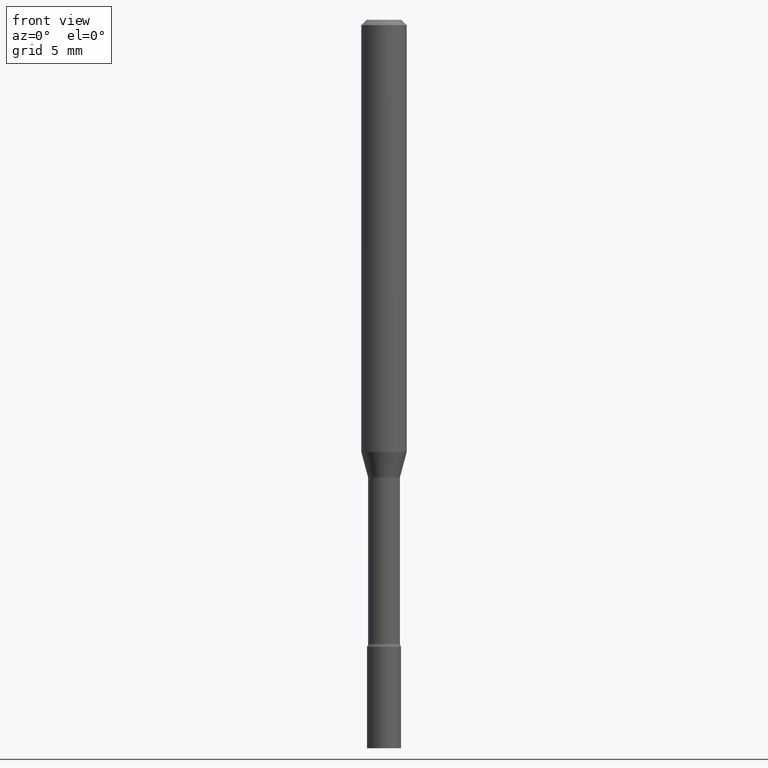
[diagram: clean part render]
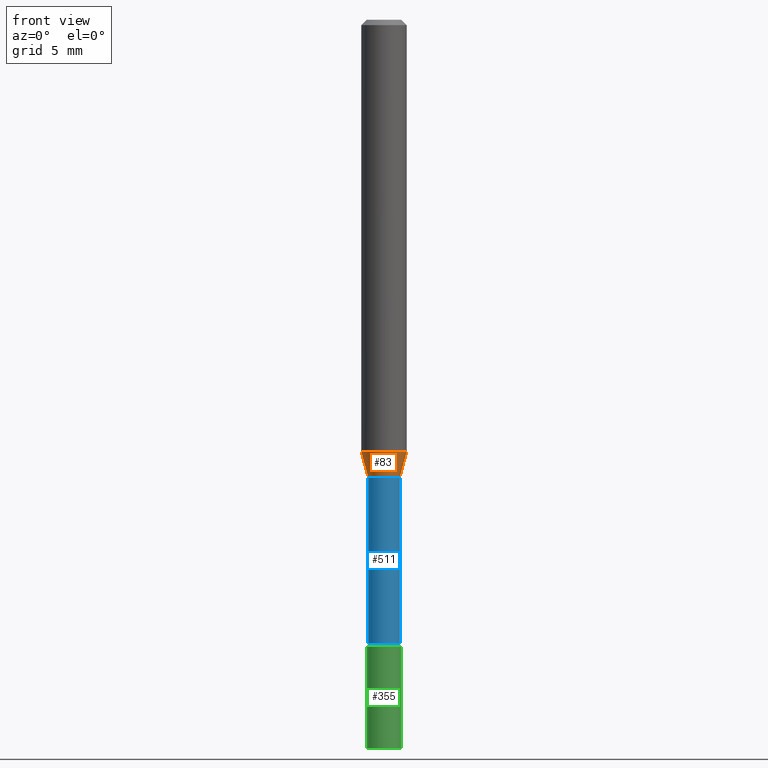
[diagram: same view with three faces highlighted in distinct colors, each labeled with its STEP entity id]
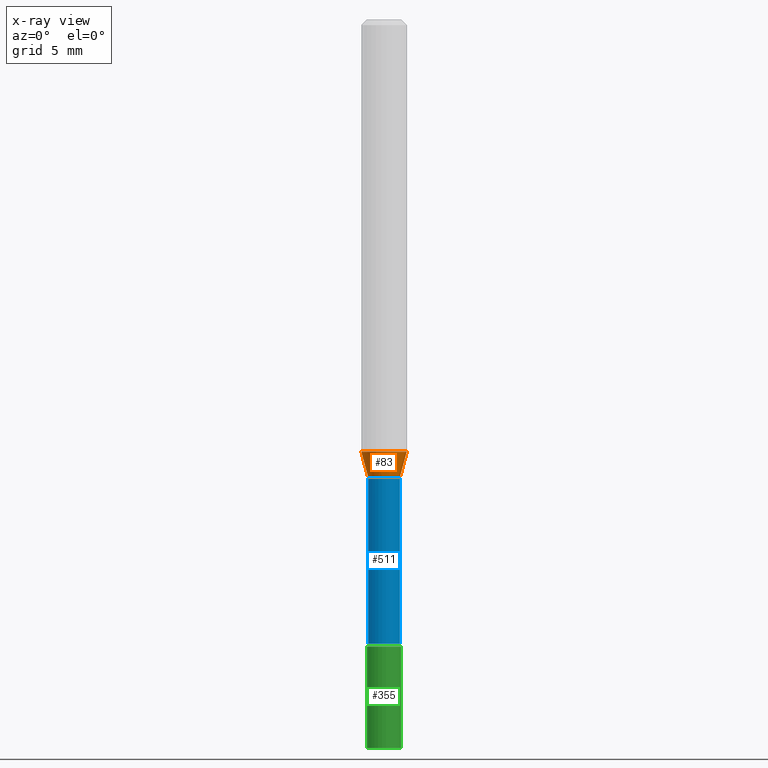
[diagram: x-ray of the same camera — body ghosted, the three highlighted faces saturated]
A machine part, front view with three faces highlighted in distinct colors.
The next image is the same camera in x-ray (body ghosted, the three faces saturated) — at least one of them is partly hidden behind the body in this view.
Their STEP definitions:

[orange] entity #83 — the highlighted conical surface has half-angle 15 deg.
#2 = VERTEX_POINT ( 'NONE', #27 ) ;
#3 = CARTESIAN_POINT ( 'NONE',  ( 0.04421111260566398110, -4.687365116437714355E-15, -1.254092501787273051 ) ) ;
#7 = ORIENTED_EDGE ( 'NONE', *, *, #67, .T. ) ;
#16 = DIRECTION ( 'NONE',  ( -0.2588190451025214611, 5.211531920934550253E-15, 0.9659258262890679791 ) ) ;
#27 = CARTESIAN_POINT ( 'NONE',  ( -0.04421111260566398110, -3.880370908893754533E-15, -1.254092501787273051 ) ) ;
#36 = CARTESIAN_POINT ( 'NONE',  ( 0.06250000000000000000, -4.576764476837847734E-15, -1.185837444817705144 ) ) ;
#67 = EDGE_CURVE ( 'NONE', #501, #213, #148, .T. ) ;
#69 = FACE_OUTER_BOUND ( 'NONE', #486, .T. ) ;
#71 = CARTESIAN_POINT ( 'NONE',  ( 0.04421111260566398110, -4.687365116437714355E-15, -1.254092501787273051 ) ) ;
#83 = ADVANCED_FACE ( 'NONE', ( #69 ), #418, .T. ) ;
#112 = DIRECTION ( 'NONE',  ( -2.445468806185136597E-29, 3.491481338843145583E-15, 1.000000000000000000 ) ) ;
#118 = ORIENTED_EDGE ( 'NONE', *, *, #261, .F. ) ;
#121 = DIRECTION ( 'NONE',  ( 1.000000000000000000, -6.982962677686262766E-15, 0.000000000000000000 ) ) ;
#125 = CIRCLE ( 'NONE', #309, 0.06250000000000000000 ) ;
#131 = CARTESIAN_POINT ( 'NONE',  ( -0.04421111260566398110, -4.064501718155114829E-15, -1.254092501787273051 ) ) ;
#132 = ORIENTED_EDGE ( 'NONE', *, *, #319, .T. ) ;
#143 = DIRECTION ( 'NONE',  ( 1.000000000000000000, -6.982962677686264344E-15, 0.000000000000000000 ) ) ;
#148 = LINE ( 'NONE', #71, #387 ) ;
#151 = VECTOR ( 'NONE', #16, 39.37007874015748143 ) ;
#191 = AXIS2_PLACEMENT_3D ( 'NONE', #237, #473, #200 ) ;
#200 = DIRECTION ( 'NONE',  ( 1.000000000000000000, -6.982962677686264344E-15, 0.000000000000000000 ) ) ;
#202 = ORIENTED_EDGE ( 'NONE', *, *, #478, .F. ) ;
#213 = VERTEX_POINT ( 'NONE', #36 ) ;
#237 = CARTESIAN_POINT ( 'NONE',  ( 3.066844093191453631E-29, -4.378640567173378440E-15, -1.254092501787273051 ) ) ;
#251 = CARTESIAN_POINT ( 'NONE',  ( -0.06250000000000000000, -3.696240099632393448E-15, -1.185837444817705144 ) ) ;
#261 = EDGE_CURVE ( 'NONE', #417, #213, #125, .T. ) ;
#303 = DIRECTION ( 'NONE',  ( 0.2588190451025214611, 1.565188264969620982E-15, 0.9659258262890679791 ) ) ;
#304 = CARTESIAN_POINT ( 'NONE',  ( 3.066844093191453631E-29, -4.378640567173378440E-15, -1.254092501787273051 ) ) ;
#309 = AXIS2_PLACEMENT_3D ( 'NONE', #316, #516, #121 ) ;
#316 = CARTESIAN_POINT ( 'NONE',  ( 2.899928480507986581E-29, -4.140329309482456065E-15, -1.185837444817705144 ) ) ;
#319 = EDGE_CURVE ( 'NONE', #2, #501, #389, .T. ) ;
#325 = LINE ( 'NONE', #131, #151 ) ;
#387 = VECTOR ( 'NONE', #303, 39.37007874015748143 ) ;
#389 = CIRCLE ( 'NONE', #191, 0.04421111260566398110 ) ;
#417 = VERTEX_POINT ( 'NONE', #251 ) ;
#418 = CONICAL_SURFACE ( 'NONE', #472, 0.04421111260566398110, 0.2617993877991501850 ) ;
#472 = AXIS2_PLACEMENT_3D ( 'NONE', #304, #112, #143 ) ;
#473 = DIRECTION ( 'NONE',  ( -2.445468806185136597E-29, 3.491481338843145583E-15, 1.000000000000000000 ) ) ;
#478 = EDGE_CURVE ( 'NONE', #2, #417, #325, .T. ) ;
#486 = EDGE_LOOP ( 'NONE', ( #202, #132, #7, #118 ) ) ;
#501 = VERTEX_POINT ( 'NONE', #3 ) ;
#516 = DIRECTION ( 'NONE',  ( -2.445468806185136597E-29, 3.491481338843145583E-15, 1.000000000000000000 ) ) ;

[blue] entity #511 — the highlighted cylindrical surface (edge-blend (fillet) strip) has radius 1.11 mm, axis along (-0, 0, 1).
#4 = CIRCLE ( 'NONE', #293, 0.04369999999999994722 ) ;
#5 = VERTEX_POINT ( 'NONE', #342 ) ;
#10 = VECTOR ( 'NONE', #117, 39.37007874015748143 ) ;
#22 = AXIS2_PLACEMENT_3D ( 'NONE', #159, #203, #314 ) ;
#26 = CARTESIAN_POINT ( 'NONE',  ( 0.000000000000000000, 0.000000000000000000, 0.000000000000000000 ) ) ;
#34 = VERTEX_POINT ( 'NONE', #182 ) ;
#37 = VERTEX_POINT ( 'NONE', #381 ) ;
#47 = VERTEX_POINT ( 'NONE', #340 ) ;
#48 = EDGE_CURVE ( 'NONE', #37, #5, #509, .T. ) ;
#76 = CARTESIAN_POINT ( 'NONE',  ( 4.187310283291023133E-29, -5.978369332325802035E-15, -1.712273030308291144 ) ) ;
#80 = EDGE_LOOP ( 'NONE', ( #207, #357, #102, #407 ) ) ;
#102 = ORIENTED_EDGE ( 'NONE', *, *, #333, .T. ) ;
#116 = CARTESIAN_POINT ( 'NONE',  ( 0.04369999999999997498, -3.051554690148896707E-16, 2.130889251022822588E-30 ) ) ;
#117 = DIRECTION ( 'NONE',  ( -2.445468806185136877E-29, 3.491481338843145188E-15, 1.000000000000000000 ) ) ;
#140 = CARTESIAN_POINT ( 'NONE',  ( -0.04369999999999997498, 3.105071755271636034E-16, -2.149574634441392424E-30 ) ) ;
#159 = CARTESIAN_POINT ( 'NONE',  ( 3.076338101710126374E-29, -4.392195495165068238E-15, -1.257974787463810973 ) ) ;
#181 = VECTOR ( 'NONE', #503, 39.37007874015748143 ) ;
#182 = CARTESIAN_POINT ( 'NONE',  ( 0.04369999999999994722, -6.283524801340691903E-15, -1.712273030308291144 ) ) ;
#199 = CIRCLE ( 'NONE', #22, 0.04370000000000000273 ) ;
#203 = DIRECTION ( 'NONE',  ( -2.445468806185136597E-29, 3.491481338843145583E-15, 1.000000000000000000 ) ) ;
#207 = ORIENTED_EDGE ( 'NONE', *, *, #48, .F. ) ;
#229 = DIRECTION ( 'NONE',  ( 1.000000000000000000, -6.982962677686272233E-15, 0.000000000000000000 ) ) ;
#246 = EDGE_CURVE ( 'NONE', #5, #47, #199, .T. ) ;
#258 = DIRECTION ( 'NONE',  ( 1.000000000000000000, -6.982962677686266711E-15, 4.876176775795935232E-29 ) ) ;
#290 = DIRECTION ( 'NONE',  ( -2.445468806185136597E-29, 3.491481338843145583E-15, 1.000000000000000000 ) ) ;
#293 = AXIS2_PLACEMENT_3D ( 'NONE', #76, #436, #229 ) ;
#299 = EDGE_CURVE ( 'NONE', #37, #34, #4, .T. ) ;
#314 = DIRECTION ( 'NONE',  ( 1.000000000000000000, -6.982962677686263555E-15, 0.000000000000000000 ) ) ;
#333 = EDGE_CURVE ( 'NONE', #34, #47, #512, .T. ) ;
#340 = CARTESIAN_POINT ( 'NONE',  ( 0.04370000000000000273, -4.697350964179957317E-15, -1.257974787463810973 ) ) ;
#342 = CARTESIAN_POINT ( 'NONE',  ( -0.04370000000000000273, -4.874775238218270843E-15, -1.257974787463810973 ) ) ;
#357 = ORIENTED_EDGE ( 'NONE', *, *, #299, .T. ) ;
#381 = CARTESIAN_POINT ( 'NONE',  ( -0.04369999999999994722, -5.673149584409622388E-15, -1.712273030308291144 ) ) ;
#407 = ORIENTED_EDGE ( 'NONE', *, *, #246, .F. ) ;
#436 = DIRECTION ( 'NONE',  ( -2.445468806185136597E-29, 3.491481338843145583E-15, 1.000000000000000000 ) ) ;
#460 = CYLINDRICAL_SURFACE ( 'NONE', #477, 0.04369999999999997498 ) ;
#477 = AXIS2_PLACEMENT_3D ( 'NONE', #26, #290, #258 ) ;
#497 = FACE_OUTER_BOUND ( 'NONE', #80, .T. ) ;
#503 = DIRECTION ( 'NONE',  ( -2.445468806185136877E-29, 3.491481338843145188E-15, 1.000000000000000000 ) ) ;
#509 = LINE ( 'NONE', #140, #181 ) ;
#511 = ADVANCED_FACE ( 'NONE', ( #497 ), #460, .T. ) ;
#512 = LINE ( 'NONE', #116, #10 ) ;

[green] entity #355 — the highlighted cylindrical surface (edge-blend (fillet) strip) has radius 1.1811 mm, axis along (-0, 0, 1).
#11 = DIRECTION ( 'NONE',  ( -2.445468806185136597E-29, 3.491481338843145583E-15, 1.000000000000000000 ) ) ;
#17 = EDGE_LOOP ( 'NONE', ( #235, #61, #352, #364 ) ) ;
#32 = VECTOR ( 'NONE', #126, 39.37007874015748143 ) ;
#52 = CARTESIAN_POINT ( 'NONE',  ( 0.04649999999999999967, -7.307670442198702662E-15, -2.000000000000000000 ) ) ;
#59 = EDGE_CURVE ( 'NONE', #160, #321, #425, .T. ) ;
#61 = ORIENTED_EDGE ( 'NONE', *, *, #517, .T. ) ;
#63 = CARTESIAN_POINT ( 'NONE',  ( -0.04649999999999999967, -6.165498658789225463E-15, -2.000000000000000000 ) ) ;
#98 = LINE ( 'NONE', #278, #32 ) ;
#113 = AXIS2_PLACEMENT_3D ( 'NONE', #174, #11, #166 ) ;
#126 = DIRECTION ( 'NONE',  ( -2.445468806185136877E-29, 3.491481338843145188E-15, 1.000000000000000000 ) ) ;
#136 = VERTEX_POINT ( 'NONE', #223 ) ;
#158 = CARTESIAN_POINT ( 'NONE',  ( -0.04649999999999999967, -6.165498658789225463E-15, -1.721000000000000085 ) ) ;
#160 = VERTEX_POINT ( 'NONE', #63 ) ;
#166 = DIRECTION ( 'NONE',  ( 1.000000000000000000, -6.982962677686260400E-15, 0.000000000000000000 ) ) ;
#174 = CARTESIAN_POINT ( 'NONE',  ( 4.208651815444620572E-29, -6.008839384149054309E-15, -1.721000000000000085 ) ) ;
#210 = AXIS2_PLACEMENT_3D ( 'NONE', #296, #429, #221 ) ;
#221 = DIRECTION ( 'NONE',  ( 1.000000000000000000, -6.982962677686260400E-15, 0.000000000000000000 ) ) ;
#223 = CARTESIAN_POINT ( 'NONE',  ( 0.04649999999999999967, -6.333547148661465016E-15, -1.721000000000000085 ) ) ;
#235 = ORIENTED_EDGE ( 'NONE', *, *, #59, .F. ) ;
#248 = DIRECTION ( 'NONE',  ( -2.445468806185136597E-29, 3.491481338843145583E-15, 1.000000000000000000 ) ) ;
#252 = CIRCLE ( 'NONE', #210, 0.04649999999999999967 ) ;
#267 = CARTESIAN_POINT ( 'NONE',  ( -0.04649999999999999967, 3.304023721284465841E-16, -2.287304816968531530E-30 ) ) ;
#276 = FACE_OUTER_BOUND ( 'NONE', #17, .T. ) ;
#278 = CARTESIAN_POINT ( 'NONE',  ( 0.04649999999999999967, -3.247077645124114474E-16, 2.267422200745110326E-30 ) ) ;
#283 = VECTOR ( 'NONE', #373, 39.37007874015748143 ) ;
#296 = CARTESIAN_POINT ( 'NONE',  ( 4.890937612370273194E-29, -6.982962677686291165E-15, -2.000000000000000000 ) ) ;
#313 = CIRCLE ( 'NONE', #113, 0.04649999999999999967 ) ;
#321 = VERTEX_POINT ( 'NONE', #158 ) ;
#334 = DIRECTION ( 'NONE',  ( 1.000000000000000000, -6.982962677686267499E-15, 4.876176775795936353E-29 ) ) ;
#352 = ORIENTED_EDGE ( 'NONE', *, *, #481, .T. ) ;
#355 = ADVANCED_FACE ( 'NONE', ( #276 ), #494, .T. ) ;
#364 = ORIENTED_EDGE ( 'NONE', *, *, #467, .F. ) ;
#373 = DIRECTION ( 'NONE',  ( -2.445468806185136877E-29, 3.491481338843145188E-15, 1.000000000000000000 ) ) ;
#406 = CARTESIAN_POINT ( 'NONE',  ( 0.000000000000000000, 0.000000000000000000, 0.000000000000000000 ) ) ;
#425 = LINE ( 'NONE', #267, #283 ) ;
#429 = DIRECTION ( 'NONE',  ( -2.445468806185136597E-29, 3.491481338843145583E-15, 1.000000000000000000 ) ) ;
#447 = VERTEX_POINT ( 'NONE', #52 ) ;
#458 = AXIS2_PLACEMENT_3D ( 'NONE', #406, #248, #334 ) ;
#467 = EDGE_CURVE ( 'NONE', #321, #136, #313, .T. ) ;
#481 = EDGE_CURVE ( 'NONE', #447, #136, #98, .T. ) ;
#494 = CYLINDRICAL_SURFACE ( 'NONE', #458, 0.04649999999999999967 ) ;
#517 = EDGE_CURVE ( 'NONE', #160, #447, #252, .T. ) ;